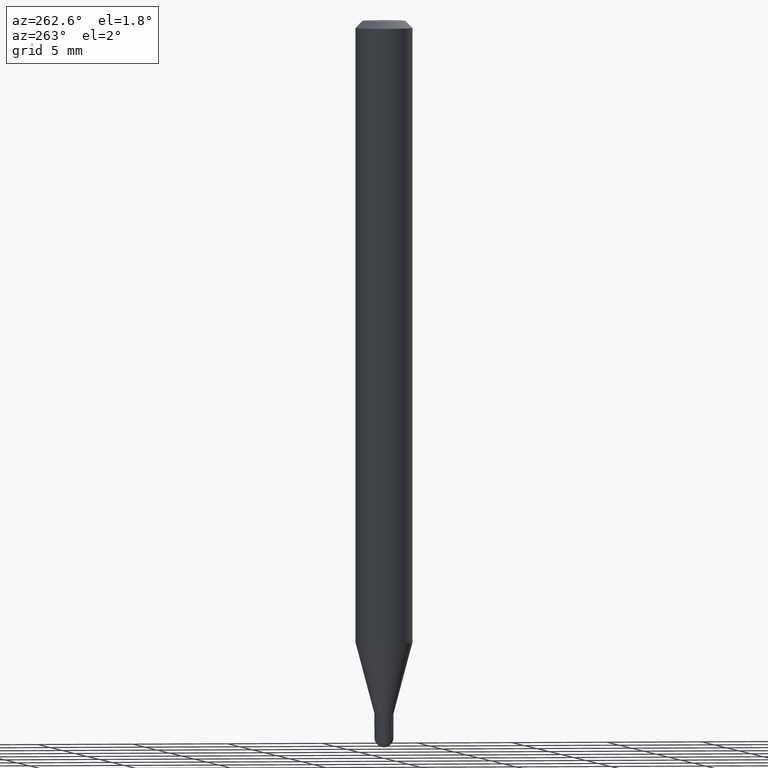
[diagram: clean part render]
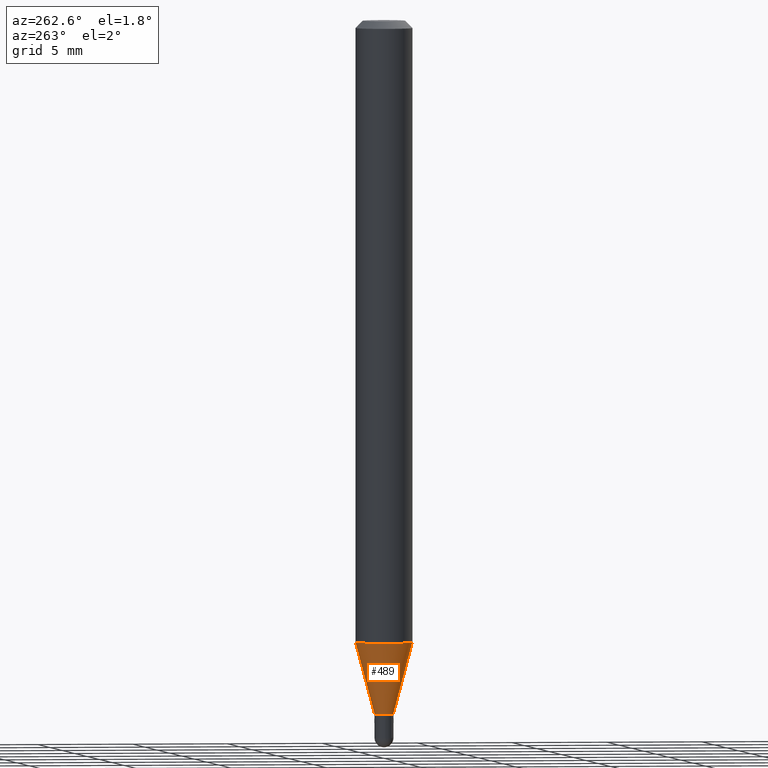
[diagram: same view with one face highlighted and labeled with its STEP entity id]
A machine part, auxiliary view. The second image highlights one B-rep face of the part: STEP entity #489.
In plain terms, the highlighted conical surface has half-angle 15 deg.
Its self-contained STEP definition (entity closure, byte-faithful):
#3 = VERTEX_POINT ( 'NONE', #493 ) ;
#13 = VECTOR ( 'NONE', #66, 39.37007874015748143 ) ;
#15 = CARTESIAN_POINT ( 'NONE',  ( 4.195754854663702092E-16, 0.05904999999999550886, -1.280243800722165037 ) ) ;
#18 = EDGE_CURVE ( 'NONE', #305, #19, #286, .T. ) ;
#19 = VERTEX_POINT ( 'NONE', #98 ) ;
#25 = EDGE_LOOP ( 'NONE', ( #260, #109, #227, #115 ) ) ;
#32 = AXIS2_PLACEMENT_3D ( 'NONE', #365, #349, #361 ) ;
#60 = CIRCLE ( 'NONE', #79, 0.05904999999999999832 ) ;
#66 = DIRECTION ( 'NONE',  ( 1.839019923739602287E-15, 0.2588190451025252359, 0.9659258262890670910 ) ) ;
#79 = AXIS2_PLACEMENT_3D ( 'NONE', #154, #424, #307 ) ;
#96 = DIRECTION ( 'NONE',  ( -1.807323732225332111E-15, -0.2588190451025184635, 0.9659258262890689783 ) ) ;
#98 = CARTESIAN_POINT ( 'NONE',  ( -4.123439461173428234E-16, -0.05905000000000448779, -1.280243800722164371 ) ) ;
#104 = EDGE_CURVE ( 'NONE', #406, #19, #60, .T. ) ;
#105 = CIRCLE ( 'NONE', #238, 0.01969999999999991896 ) ;
#109 = ORIENTED_EDGE ( 'NONE', *, *, #211, .T. ) ;
#110 = DIRECTION ( 'NONE',  ( -6.982962677686265922E-15, -1.000000000000000000, 0.000000000000000000 ) ) ;
#115 = ORIENTED_EDGE ( 'NONE', *, *, #104, .F. ) ;
#120 = CARTESIAN_POINT ( 'NONE',  ( -1.375643647503839622E-16, -0.01970000000000490109, -1.427099999999999591 ) ) ;
#154 = CARTESIAN_POINT ( 'NONE',  ( 3.130739579036417639E-29, -4.470028536934500770E-15, -1.280243800722164815 ) ) ;
#179 = VECTOR ( 'NONE', #96, 39.37007874015748854 ) ;
#211 = EDGE_CURVE ( 'NONE', #3, #305, #105, .T. ) ;
#227 = ORIENTED_EDGE ( 'NONE', *, *, #18, .T. ) ;
#238 = AXIS2_PLACEMENT_3D ( 'NONE', #507, #346, #110 ) ;
#248 = CONICAL_SURFACE ( 'NONE', #32, 0.01969999999999991896, 0.2617993877991505736 ) ;
#260 = ORIENTED_EDGE ( 'NONE', *, *, #452, .F. ) ;
#283 = FACE_OUTER_BOUND ( 'NONE', #25, .T. ) ;
#286 = LINE ( 'NONE', #445, #179 ) ;
#305 = VERTEX_POINT ( 'NONE', #120 ) ;
#307 = DIRECTION ( 'NONE',  ( -6.982962677686265922E-15, -1.000000000000000000, 4.626330217890369336E-15 ) ) ;
#346 = DIRECTION ( 'NONE',  ( -2.445424517791391179E-29, 3.491544762343727703E-15, 1.000000000000000000 ) ) ;
#349 = DIRECTION ( 'NONE',  ( -2.445424517791391179E-29, 3.491544762343727703E-15, 1.000000000000000000 ) ) ;
#361 = DIRECTION ( 'NONE',  ( -6.982962677686265922E-15, -1.000000000000000000, 0.000000000000000000 ) ) ;
#365 = CARTESIAN_POINT ( 'NONE',  ( 3.489865329340093750E-29, -4.982783530340732136E-15, -1.427099999999999591 ) ) ;
#406 = VERTEX_POINT ( 'NONE', #15 ) ;
#417 = CARTESIAN_POINT ( 'NONE',  ( 1.399769189447740433E-16, 0.01969999999999494031, -1.427099999999999591 ) ) ;
#424 = DIRECTION ( 'NONE',  ( -2.445424517791391179E-29, 3.491544762343727703E-15, 1.000000000000000000 ) ) ;
#445 = CARTESIAN_POINT ( 'NONE',  ( -1.375643647503839622E-16, -0.01970000000000490109, -1.427099999999999591 ) ) ;
#452 = EDGE_CURVE ( 'NONE', #3, #406, #468, .T. ) ;
#468 = LINE ( 'NONE', #417, #13 ) ;
#489 = ADVANCED_FACE ( 'NONE', ( #283 ), #248, .T. ) ;
#493 = CARTESIAN_POINT ( 'NONE',  ( 2.797762022055723851E-16, 0.01969999999999494031, -1.427099999999999591 ) ) ;
#507 = CARTESIAN_POINT ( 'NONE',  ( 3.489865329340093750E-29, -4.982783530340732136E-15, -1.427099999999999591 ) ) ;